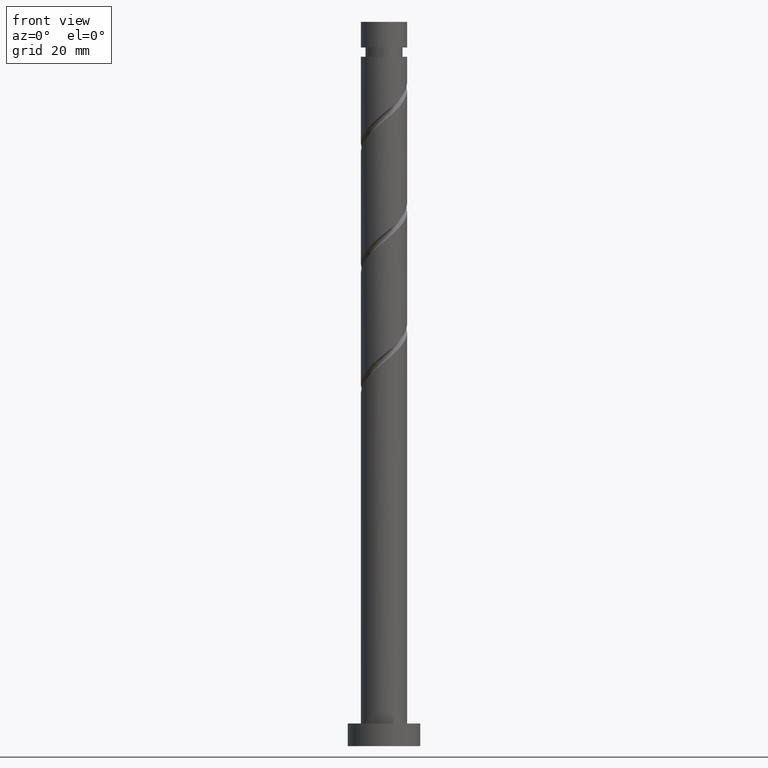
[diagram: clean part render]
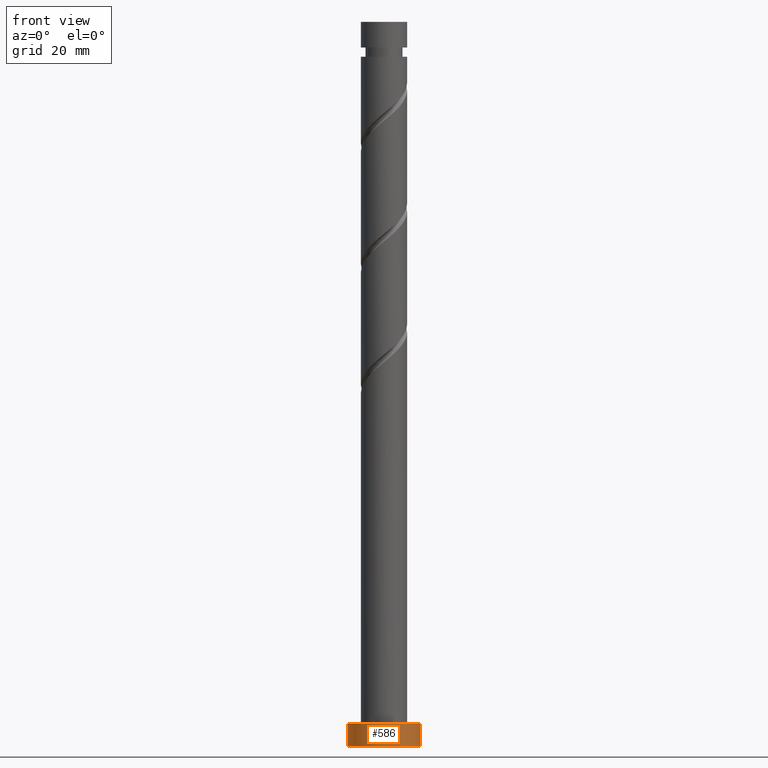
[diagram: same view with one face highlighted and labeled with its STEP entity id]
A machine part, front view. The second image highlights one B-rep face of the part: STEP entity #586.
In plain terms, the highlighted cylindrical surface (edge-blend (fillet) strip) has radius 8 mm, axis along (-0, -0, -1).
Its self-contained STEP definition (entity closure, byte-faithful):
#63 = EDGE_CURVE ( 'NONE', #1562, #127, #309, .T. ) ;
#127 = VERTEX_POINT ( 'NONE', #1523 ) ;
#222 = ORIENTED_EDGE ( 'NONE', *, *, #944, .F. ) ;
#288 = CIRCLE ( 'NONE', #860, 8.000000000000000000 ) ;
#309 = CIRCLE ( 'NONE', #949, 8.000000000000000000 ) ;
#316 = CARTESIAN_POINT ( 'NONE',  ( 0.000000000000000000, 0.000000000000000000, 0.000000000000000000 ) ) ;
#348 = EDGE_CURVE ( 'NONE', #1562, #800, #1647, .T. ) ;
#427 = CARTESIAN_POINT ( 'NONE',  ( 8.000000000000000000, 9.797174393178825657E-16, 0.000000000000000000 ) ) ;
#448 = DIRECTION ( 'NONE',  ( 0.000000000000000000, 0.000000000000000000, 1.000000000000000000 ) ) ;
#508 = ORIENTED_EDGE ( 'NONE', *, *, #996, .T. ) ;
#524 = VERTEX_POINT ( 'NONE', #427 ) ;
#566 = DIRECTION ( 'NONE',  ( -0.000000000000000000, -0.000000000000000000, -1.000000000000000000 ) ) ;
#570 = DIRECTION ( 'NONE',  ( 0.000000000000000000, 0.000000000000000000, 1.000000000000000000 ) ) ;
#575 = DIRECTION ( 'NONE',  ( -1.000000000000000000, 0.000000000000000000, 0.000000000000000000 ) ) ;
#586 = ADVANCED_FACE ( 'NONE', ( #827 ), #691, .T. ) ;
#643 = CARTESIAN_POINT ( 'NONE',  ( -8.000000000000000000, 0.000000000000000000, 5.000000000000000000 ) ) ;
#666 = ORIENTED_EDGE ( 'NONE', *, *, #348, .T. ) ;
#691 = CYLINDRICAL_SURFACE ( 'NONE', #936, 8.000000000000000000 ) ;
#782 = ORIENTED_EDGE ( 'NONE', *, *, #63, .F. ) ;
#800 = VERTEX_POINT ( 'NONE', #1625 ) ;
#827 = FACE_OUTER_BOUND ( 'NONE', #1354, .T. ) ;
#860 = AXIS2_PLACEMENT_3D ( 'NONE', #316, #570, #1479 ) ;
#936 = AXIS2_PLACEMENT_3D ( 'NONE', #1194, #566, #575 ) ;
#944 = EDGE_CURVE ( 'NONE', #127, #524, #1616, .T. ) ;
#949 = AXIS2_PLACEMENT_3D ( 'NONE', #954, #448, #1246 ) ;
#954 = CARTESIAN_POINT ( 'NONE',  ( 0.000000000000000000, 0.000000000000000000, 5.000000000000000000 ) ) ;
#996 = EDGE_CURVE ( 'NONE', #800, #524, #288, .T. ) ;
#1084 = CARTESIAN_POINT ( 'NONE',  ( 8.000000000000000000, 9.797174393178825657E-16, 5.000000000000000000 ) ) ;
#1160 = VECTOR ( 'NONE', #1630, 1000.000000000000000 ) ;
#1194 = CARTESIAN_POINT ( 'NONE',  ( 0.000000000000000000, 0.000000000000000000, 5.000000000000000000 ) ) ;
#1246 = DIRECTION ( 'NONE',  ( 1.000000000000000000, 0.000000000000000000, 0.000000000000000000 ) ) ;
#1298 = VECTOR ( 'NONE', #1605, 1000.000000000000000 ) ;
#1354 = EDGE_LOOP ( 'NONE', ( #222, #782, #666, #508 ) ) ;
#1479 = DIRECTION ( 'NONE',  ( 1.000000000000000000, 0.000000000000000000, 0.000000000000000000 ) ) ;
#1523 = CARTESIAN_POINT ( 'NONE',  ( 8.000000000000000000, 9.797174393178825657E-16, 5.000000000000000000 ) ) ;
#1562 = VERTEX_POINT ( 'NONE', #1622 ) ;
#1605 = DIRECTION ( 'NONE',  ( -0.000000000000000000, -0.000000000000000000, -1.000000000000000000 ) ) ;
#1616 = LINE ( 'NONE', #1084, #1298 ) ;
#1622 = CARTESIAN_POINT ( 'NONE',  ( -8.000000000000000000, 0.000000000000000000, 5.000000000000000000 ) ) ;
#1625 = CARTESIAN_POINT ( 'NONE',  ( -8.000000000000000000, 0.000000000000000000, 0.000000000000000000 ) ) ;
#1630 = DIRECTION ( 'NONE',  ( -0.000000000000000000, -0.000000000000000000, -1.000000000000000000 ) ) ;
#1647 = LINE ( 'NONE', #643, #1160 ) ;